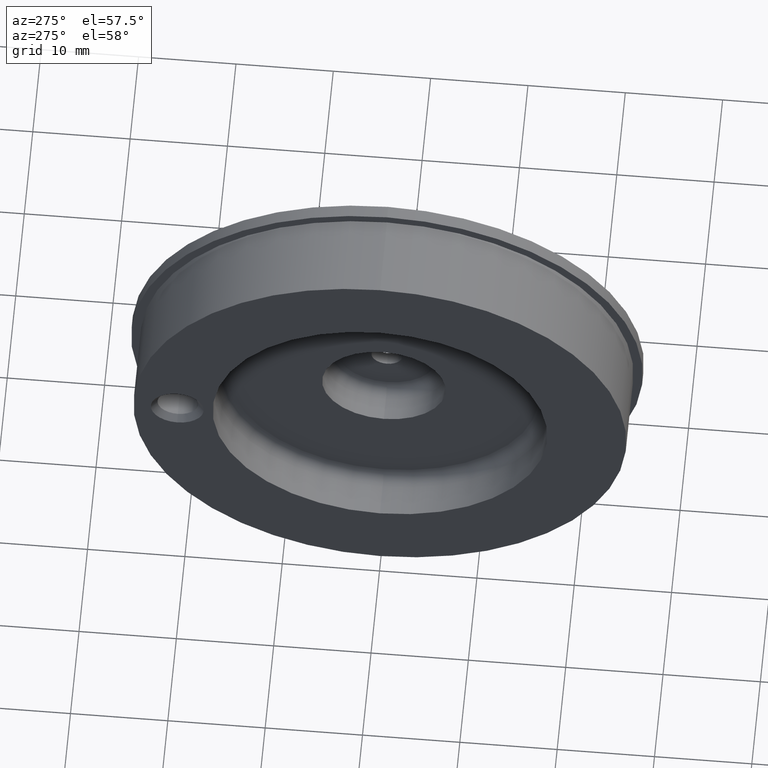
[diagram: clean part render]
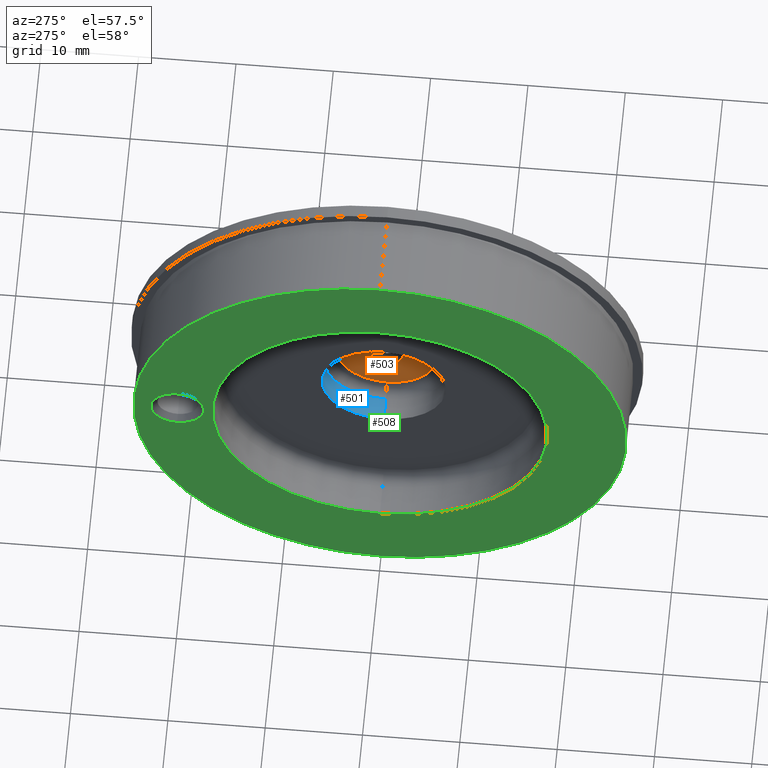
[diagram: same view with three faces highlighted in distinct colors, each labeled with its STEP entity id]
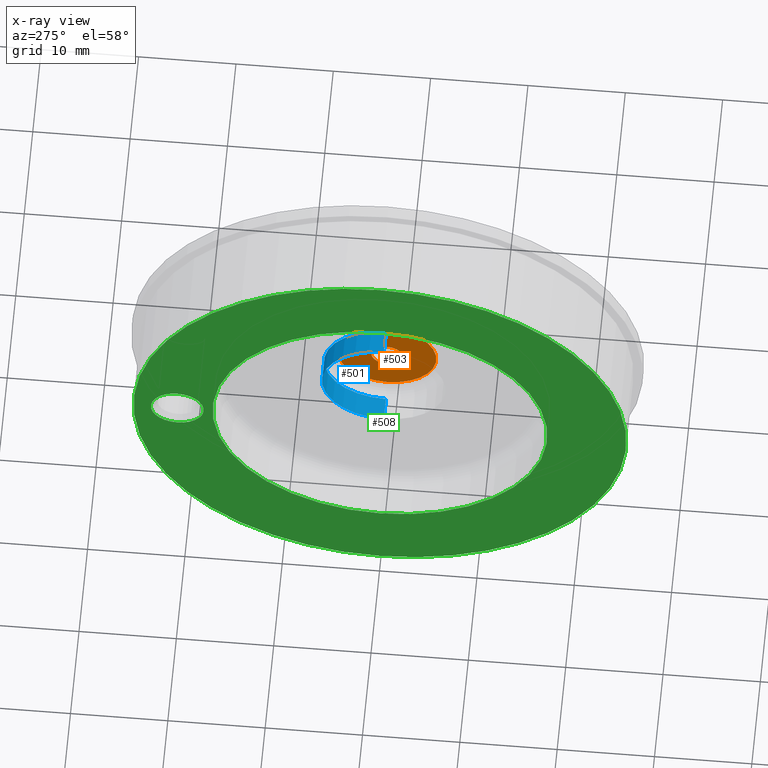
[diagram: x-ray of the same camera — body ghosted, the three highlighted faces saturated]
A machine part, auxiliary view with three faces highlighted in distinct colors.
The next image is the same camera in x-ray (body ghosted, the three faces saturated) — at least one of them is partly hidden behind the body in this view.
Their STEP definitions:

[orange] entity #503 — the highlighted planar face has unit normal (-1, 0, 0).
#16 = DIRECTION ( 'NONE',  ( 0.0000000000000000000, 0.0000000000000000000, -1.000000000000000000 ) ) ;
#24 = CARTESIAN_POINT ( 'NONE',  ( -0.04999999999999988500, 0.0000000000000000000, 0.0000000000000000000 ) ) ;
#26 = CARTESIAN_POINT ( 'NONE',  ( -0.04999999999999996100, 0.0000000000000000000, 0.0000000000000000000 ) ) ;
#30 = CARTESIAN_POINT ( 'NONE',  ( -0.04999999999999996100, 0.0000000000000000000, 0.0000000000000000000 ) ) ;
#37 = DIRECTION ( 'NONE',  ( 0.0000000000000000000, 0.0000000000000000000, -1.000000000000000000 ) ) ;
#51 = DIRECTION ( 'NONE',  ( 0.0000000000000000000, 0.0000000000000000000, -1.000000000000000000 ) ) ;
#68 = DIRECTION ( 'NONE',  ( 1.000000000000000000, -0.0000000000000000000, -0.0000000000000000000 ) ) ;
#84 = DIRECTION ( 'NONE',  ( 0.0000000000000000000, 0.0000000000000000000, -1.000000000000000000 ) ) ;
#96 = DIRECTION ( 'NONE',  ( 1.000000000000000000, -0.0000000000000000000, -0.0000000000000000000 ) ) ;
#123 = DIRECTION ( 'NONE',  ( 1.000000000000000000, -0.0000000000000000000, -0.0000000000000000000 ) ) ;
#142 = CARTESIAN_POINT ( 'NONE',  ( -0.04999999999999988500, 0.0000000000000000000, 0.0000000000000000000 ) ) ;
#151 = DIRECTION ( 'NONE',  ( 1.000000000000000000, -0.0000000000000000000, -0.0000000000000000000 ) ) ;
#192 = VERTEX_POINT ( 'NONE', #705 ) ;
#205 = VERTEX_POINT ( 'NONE', #644 ) ;
#250 = ORIENTED_EDGE ( 'NONE', *, *, #630, .T. ) ;
#270 = ORIENTED_EDGE ( 'NONE', *, *, #574, .F. ) ;
#274 = FACE_BOUND ( 'NONE', #401, .T. ) ;
#289 = FACE_OUTER_BOUND ( 'NONE', #350, .T. ) ;
#307 = CIRCLE ( 'NONE', #546, 0.06249999999999997900 ) ;
#336 = ORIENTED_EDGE ( 'NONE', *, *, #608, .T. ) ;
#350 = EDGE_LOOP ( 'NONE', ( #270, #434 ) ) ;
#373 = CIRCLE ( 'NONE', #555, 0.06249999999999997900 ) ;
#395 = VERTEX_POINT ( 'NONE', #667 ) ;
#398 = CIRCLE ( 'NONE', #522, 0.1999999999999999600 ) ;
#401 = EDGE_LOOP ( 'NONE', ( #250, #336 ) ) ;
#434 = ORIENTED_EDGE ( 'NONE', *, *, #611, .F. ) ;
#453 = VERTEX_POINT ( 'NONE', #710 ) ;
#461 = CIRCLE ( 'NONE', #562, 0.1999999999999999600 ) ;
#503 = ADVANCED_FACE ( 'NONE', ( #274, #289 ), #664, .T. ) ;
#522 = AXIS2_PLACEMENT_3D ( 'NONE', #30, #123, #84 ) ;
#546 = AXIS2_PLACEMENT_3D ( 'NONE', #24, #96, #37 ) ;
#555 = AXIS2_PLACEMENT_3D ( 'NONE', #142, #151, #51 ) ;
#562 = AXIS2_PLACEMENT_3D ( 'NONE', #26, #68, #16 ) ;
#565 = AXIS2_PLACEMENT_3D ( 'NONE', #654, #707, #653 ) ;
#574 = EDGE_CURVE ( 'NONE', #205, #453, #461, .T. ) ;
#608 = EDGE_CURVE ( 'NONE', #395, #192, #307, .T. ) ;
#611 = EDGE_CURVE ( 'NONE', #453, #205, #398, .T. ) ;
#630 = EDGE_CURVE ( 'NONE', #192, #395, #373, .T. ) ;
#644 = CARTESIAN_POINT ( 'NONE',  ( -0.04999999999999996100, 0.0000000000000000000, -0.1999999999999999600 ) ) ;
#653 = DIRECTION ( 'NONE',  ( 0.0000000000000000000, 0.0000000000000000000, 1.000000000000000000 ) ) ;
#654 = CARTESIAN_POINT ( 'NONE',  ( -0.04999999999999992600, 0.1999999999999999600, 0.0000000000000000000 ) ) ;
#664 = PLANE ( 'NONE',  #565 ) ;
#667 = CARTESIAN_POINT ( 'NONE',  ( -0.04999999999999988500, 7.654042494670956000E-018, 0.06249999999999997900 ) ) ;
#705 = CARTESIAN_POINT ( 'NONE',  ( -0.04999999999999988500, 0.0000000000000000000, -0.06249999999999997900 ) ) ;
#707 = DIRECTION ( 'NONE',  ( -1.000000000000000000, 0.0000000000000000000, 0.0000000000000000000 ) ) ;
#710 = CARTESIAN_POINT ( 'NONE',  ( -0.04999999999999996100, 2.755455298081544200E-017, 0.1999999999999999600 ) ) ;

[blue] entity #501 — the highlighted cylindrical surface (partial cylindrical patch) has radius 6.35 mm, axis along (1, -0, -0).
#4 = DIRECTION ( 'NONE',  ( 0.0000000000000000000, 0.0000000000000000000, -1.000000000000000000 ) ) ;
#12 = CARTESIAN_POINT ( 'NONE',  ( -0.1950000000000000100, 0.0000000000000000000, 0.0000000000000000000 ) ) ;
#66 = DIRECTION ( 'NONE',  ( 0.0000000000000000000, 0.0000000000000000000, -1.000000000000000000 ) ) ;
#92 = DIRECTION ( 'NONE',  ( 1.000000000000000000, -0.0000000000000000000, -0.0000000000000000000 ) ) ;
#112 = DIRECTION ( 'NONE',  ( 1.000000000000000000, -0.0000000000000000000, -0.0000000000000000000 ) ) ;
#121 = DIRECTION ( 'NONE',  ( 1.000000000000000000, -0.0000000000000000000, -0.0000000000000000000 ) ) ;
#122 = CARTESIAN_POINT ( 'NONE',  ( 0.0000000000000000000, 0.0000000000000000000, -0.2499999999999999700 ) ) ;
#127 = CARTESIAN_POINT ( 'NONE',  ( -0.09999999999999997800, 0.0000000000000000000, 0.0000000000000000000 ) ) ;
#156 = CARTESIAN_POINT ( 'NONE',  ( 0.0000000000000000000, 3.061616997868382400E-017, 0.2499999999999999700 ) ) ;
#177 = DIRECTION ( 'NONE',  ( 1.000000000000000000, -0.0000000000000000000, -0.0000000000000000000 ) ) ;
#237 = ORIENTED_EDGE ( 'NONE', *, *, #601, .F. ) ;
#239 = VERTEX_POINT ( 'NONE', #727 ) ;
#252 = CYLINDRICAL_SURFACE ( 'NONE', #610, 0.2499999999999999700 ) ;
#254 = CIRCLE ( 'NONE', #535, 0.2499999999999999700 ) ;
#281 = ORIENTED_EDGE ( 'NONE', *, *, #576, .F. ) ;
#299 = ORIENTED_EDGE ( 'NONE', *, *, #577, .T. ) ;
#321 = LINE ( 'NONE', #122, #389 ) ;
#332 = FACE_OUTER_BOUND ( 'NONE', #340, .T. ) ;
#340 = EDGE_LOOP ( 'NONE', ( #237, #281, #380, #299 ) ) ;
#380 = ORIENTED_EDGE ( 'NONE', *, *, #588, .T. ) ;
#389 = VECTOR ( 'NONE', #121, 39.37007874015748100 ) ;
#396 = VECTOR ( 'NONE', #112, 39.37007874015748100 ) ;
#409 = LINE ( 'NONE', #156, #396 ) ;
#421 = VERTEX_POINT ( 'NONE', #657 ) ;
#446 = VERTEX_POINT ( 'NONE', #726 ) ;
#457 = VERTEX_POINT ( 'NONE', #728 ) ;
#478 = CIRCLE ( 'NONE', #536, 0.2499999999999999700 ) ;
#501 = ADVANCED_FACE ( 'NONE', ( #332 ), #252, .F. ) ;
#535 = AXIS2_PLACEMENT_3D ( 'NONE', #12, #92, #4 ) ;
#536 = AXIS2_PLACEMENT_3D ( 'NONE', #127, #177, #66 ) ;
#576 = EDGE_CURVE ( 'NONE', #457, #446, #254, .T. ) ;
#577 = EDGE_CURVE ( 'NONE', #239, #421, #478, .T. ) ;
#588 = EDGE_CURVE ( 'NONE', #457, #239, #321, .T. ) ;
#601 = EDGE_CURVE ( 'NONE', #446, #421, #409, .T. ) ;
#610 = AXIS2_PLACEMENT_3D ( 'NONE', #718, #659, #670 ) ;
#657 = CARTESIAN_POINT ( 'NONE',  ( -0.09999999999999997800, 3.061616997868382400E-017, 0.2499999999999999700 ) ) ;
#659 = DIRECTION ( 'NONE',  ( 1.000000000000000000, -0.0000000000000000000, -0.0000000000000000000 ) ) ;
#670 = DIRECTION ( 'NONE',  ( 0.0000000000000000000, 0.0000000000000000000, -1.000000000000000000 ) ) ;
#718 = CARTESIAN_POINT ( 'NONE',  ( 0.0000000000000000000, 0.0000000000000000000, 0.0000000000000000000 ) ) ;
#726 = CARTESIAN_POINT ( 'NONE',  ( -0.1950000000000000100, 3.061616997868382400E-017, 0.2499999999999999700 ) ) ;
#727 = CARTESIAN_POINT ( 'NONE',  ( -0.09999999999999997800, 0.0000000000000000000, -0.2499999999999999700 ) ) ;
#728 = CARTESIAN_POINT ( 'NONE',  ( -0.1950000000000000100, 0.0000000000000000000, -0.2499999999999999700 ) ) ;

[green] entity #508 — the highlighted planar face has unit normal (-1, 0, 0).
#8 = CARTESIAN_POINT ( 'NONE',  ( -0.3750000000000001100, 0.0000000000000000000, 0.0000000000000000000 ) ) ;
#10 = CARTESIAN_POINT ( 'NONE',  ( -0.3750000000000001100, 0.0000000000000000000, 0.0000000000000000000 ) ) ;
#29 = DIRECTION ( 'NONE',  ( 0.0000000000000000000, 0.0000000000000000000, -1.000000000000000000 ) ) ;
#48 = CARTESIAN_POINT ( 'NONE',  ( -0.3750000000000001100, 0.8199999999999999500, 0.0000000000000000000 ) ) ;
#55 = DIRECTION ( 'NONE',  ( 0.0000000000000000000, 0.0000000000000000000, 1.000000000000000000 ) ) ;
#57 = PLANE ( 'NONE',  #529 ) ;
#62 = DIRECTION ( 'NONE',  ( 0.0000000000000000000, 0.0000000000000000000, 1.000000000000000000 ) ) ;
#65 = DIRECTION ( 'NONE',  ( -1.000000000000000000, -0.0000000000000000000, -0.0000000000000000000 ) ) ;
#69 = DIRECTION ( 'NONE',  ( 0.0000000000000000000, 0.0000000000000000000, -1.000000000000000000 ) ) ;
#74 = DIRECTION ( 'NONE',  ( -1.000000000000000000, -0.0000000000000000000, -0.0000000000000000000 ) ) ;
#83 = DIRECTION ( 'NONE',  ( 0.0000000000000000000, 0.0000000000000000000, -1.000000000000000000 ) ) ;
#90 = CARTESIAN_POINT ( 'NONE',  ( -0.3750000000000000600, 0.9970000000000000000, 0.0000000000000000000 ) ) ;
#98 = CARTESIAN_POINT ( 'NONE',  ( -0.3750000000000001100, 0.8199999999999999500, 0.0000000000000000000 ) ) ;
#99 = DIRECTION ( 'NONE',  ( 1.000000000000000000, -0.0000000000000000000, -0.0000000000000000000 ) ) ;
#100 = DIRECTION ( 'NONE',  ( -1.000000000000000000, 0.0000000000000000000, 0.0000000000000000000 ) ) ;
#101 = DIRECTION ( 'NONE',  ( 1.000000000000000000, -0.0000000000000000000, -0.0000000000000000000 ) ) ;
#105 = CARTESIAN_POINT ( 'NONE',  ( -0.3749999999999999400, 0.0000000000000000000, 0.0000000000000000000 ) ) ;
#125 = CARTESIAN_POINT ( 'NONE',  ( -0.3749999999999999400, 0.0000000000000000000, 0.0000000000000000000 ) ) ;
#140 = DIRECTION ( 'NONE',  ( 0.0000000000000000000, 0.0000000000000000000, 1.000000000000000000 ) ) ;
#144 = DIRECTION ( 'NONE',  ( 1.000000000000000000, -0.0000000000000000000, -0.0000000000000000000 ) ) ;
#161 = DIRECTION ( 'NONE',  ( 1.000000000000000000, -0.0000000000000000000, -0.0000000000000000000 ) ) ;
#163 = DIRECTION ( 'NONE',  ( 0.0000000000000000000, 0.0000000000000000000, -1.000000000000000000 ) ) ;
#187 = FACE_OUTER_BOUND ( 'NONE', #344, .T. ) ;
#218 = CIRCLE ( 'NONE', #557, 0.1069999999999999800 ) ;
#248 = CIRCLE ( 'NONE', #563, 0.6770000000000000500 ) ;
#263 = VERTEX_POINT ( 'NONE', #648 ) ;
#277 = CIRCLE ( 'NONE', #537, 0.6770000000000000500 ) ;
#278 = VERTEX_POINT ( 'NONE', #714 ) ;
#286 = CIRCLE ( 'NONE', #549, 0.9970000000000000000 ) ;
#302 = EDGE_LOOP ( 'NONE', ( #388, #337 ) ) ;
#308 = CIRCLE ( 'NONE', #524, 0.1069999999999999800 ) ;
#315 = EDGE_LOOP ( 'NONE', ( #445, #323 ) ) ;
#323 = ORIENTED_EDGE ( 'NONE', *, *, #634, .F. ) ;
#324 = VERTEX_POINT ( 'NONE', #699 ) ;
#337 = ORIENTED_EDGE ( 'NONE', *, *, #613, .T. ) ;
#338 = FACE_BOUND ( 'NONE', #315, .T. ) ;
#344 = EDGE_LOOP ( 'NONE', ( #351, #383 ) ) ;
#351 = ORIENTED_EDGE ( 'NONE', *, *, #628, .F. ) ;
#374 = CIRCLE ( 'NONE', #554, 0.9970000000000000000 ) ;
#383 = ORIENTED_EDGE ( 'NONE', *, *, #620, .F. ) ;
#388 = ORIENTED_EDGE ( 'NONE', *, *, #581, .T. ) ;
#397 = VERTEX_POINT ( 'NONE', #698 ) ;
#426 = VERTEX_POINT ( 'NONE', #680 ) ;
#445 = ORIENTED_EDGE ( 'NONE', *, *, #638, .F. ) ;
#458 = VERTEX_POINT ( 'NONE', #730 ) ;
#473 = FACE_BOUND ( 'NONE', #302, .T. ) ;
#508 = ADVANCED_FACE ( 'NONE', ( #338, #473, #187 ), #57, .T. ) ;
#524 = AXIS2_PLACEMENT_3D ( 'NONE', #98, #74, #140 ) ;
#529 = AXIS2_PLACEMENT_3D ( 'NONE', #90, #100, #55 ) ;
#537 = AXIS2_PLACEMENT_3D ( 'NONE', #105, #144, #83 ) ;
#549 = AXIS2_PLACEMENT_3D ( 'NONE', #10, #99, #29 ) ;
#554 = AXIS2_PLACEMENT_3D ( 'NONE', #8, #161, #69 ) ;
#557 = AXIS2_PLACEMENT_3D ( 'NONE', #48, #65, #62 ) ;
#563 = AXIS2_PLACEMENT_3D ( 'NONE', #125, #101, #163 ) ;
#581 = EDGE_CURVE ( 'NONE', #397, #278, #277, .T. ) ;
#613 = EDGE_CURVE ( 'NONE', #278, #397, #248, .T. ) ;
#620 = EDGE_CURVE ( 'NONE', #458, #263, #286, .T. ) ;
#628 = EDGE_CURVE ( 'NONE', #263, #458, #374, .T. ) ;
#634 = EDGE_CURVE ( 'NONE', #324, #426, #218, .T. ) ;
#638 = EDGE_CURVE ( 'NONE', #426, #324, #308, .T. ) ;
#648 = CARTESIAN_POINT ( 'NONE',  ( -0.3750000000000001100, 0.0000000000000000000, -0.9970000000000000000 ) ) ;
#680 = CARTESIAN_POINT ( 'NONE',  ( -0.3750000000000001100, 0.8199999999999999500, 0.1069999999999999800 ) ) ;
#698 = CARTESIAN_POINT ( 'NONE',  ( -0.3749999999999999400, 0.0000000000000000000, -0.6770000000000000500 ) ) ;
#699 = CARTESIAN_POINT ( 'NONE',  ( -0.3750000000000001100, 0.8199999999999999500, -0.1069999999999999800 ) ) ;
#714 = CARTESIAN_POINT ( 'NONE',  ( -0.3749999999999999400, 8.290858830227582600E-017, 0.6770000000000000500 ) ) ;
#730 = CARTESIAN_POINT ( 'NONE',  ( -0.3750000000000001100, 1.220972858749911300E-016, 0.9970000000000000000 ) ) ;